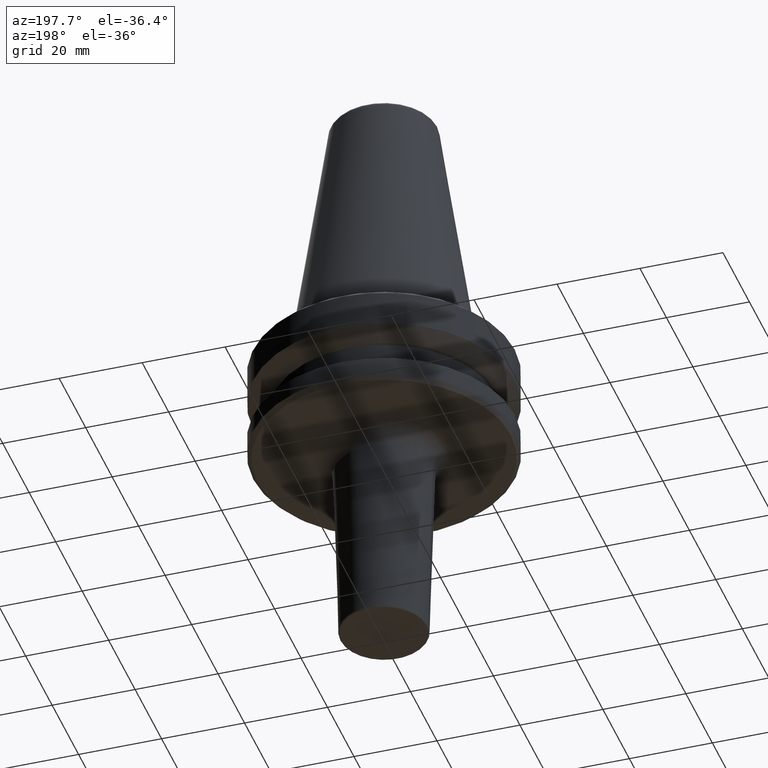
[diagram: clean part render]
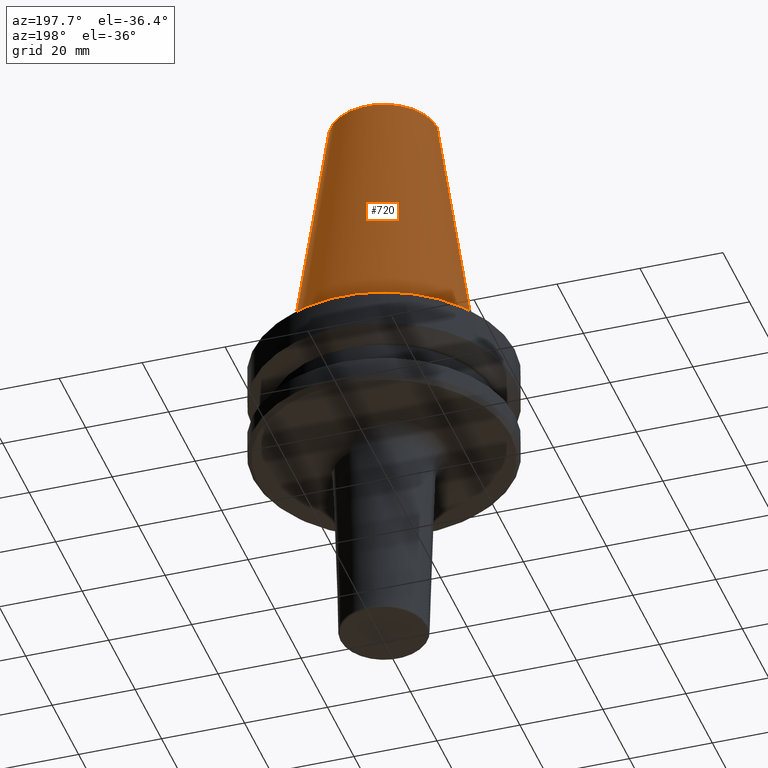
[diagram: same view with one face highlighted and labeled with its STEP entity id]
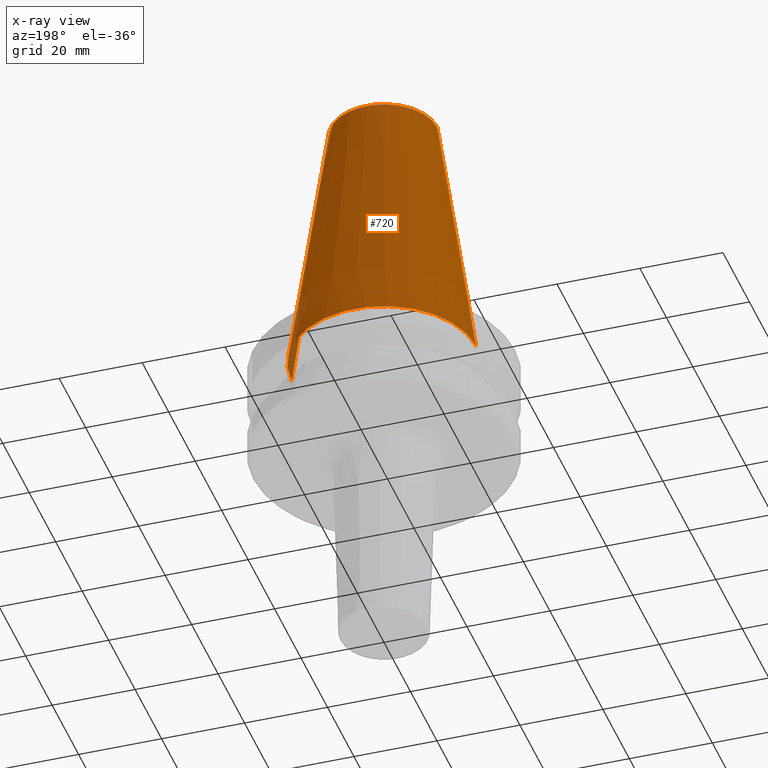
[diagram: x-ray of the same camera — body ghosted, the highlighted face saturated]
A machine part, auxiliary view. The second image highlights one B-rep face of the part: STEP entity #720.
The next image is the same camera in x-ray: the body ghosted, the highlighted face saturated — about 2% of this face is hidden behind the body in this view.
In plain terms, the highlighted conical surface has half-angle 8.297 deg.
Its self-contained STEP definition (entity closure, byte-faithful):
#1 = DIRECTION ( 'NONE',  ( -1.000000000000000000, 0.0000000000000000000, 0.0000000000000000000 ) ) ;
#13 = DIRECTION ( 'NONE',  ( 1.000000000000000000, 0.0000000000000000000, 0.0000000000000000000 ) ) ;
#80 = EDGE_LOOP ( 'NONE', ( #546, #548, #480, #976 ) ) ;
#107 = DIRECTION ( 'NONE',  ( 0.1443081888881795900, 1.767265616126607700E-017, -0.9895327920891826600 ) ) ;
#154 = VERTEX_POINT ( 'NONE', #803 ) ;
#222 = DIRECTION ( 'NONE',  ( 1.000000000000000000, 0.0000000000000000000, 0.0000000000000000000 ) ) ;
#254 = EDGE_CURVE ( 'NONE', #322, #677, #777, .T. ) ;
#303 = CIRCLE ( 'NONE', #657, 22.22499999999993700 ) ;
#322 = VERTEX_POINT ( 'NONE', #668 ) ;
#323 = VECTOR ( 'NONE', #847, 1000.000000000000000 ) ;
#344 = DIRECTION ( 'NONE',  ( -0.0000000000000000000, -0.0000000000000000000, 1.000000000000000000 ) ) ;
#434 = LINE ( 'NONE', #855, #846 ) ;
#443 = CARTESIAN_POINT ( 'NONE',  ( -22.22499999999993700, 2.721777511104985000E-015, -65.40000000000057400 ) ) ;
#480 = ORIENTED_EDGE ( 'NONE', *, *, #508, .T. ) ;
#508 = EDGE_CURVE ( 'NONE', #872, #677, #303, .T. ) ;
#546 = ORIENTED_EDGE ( 'NONE', *, *, #675, .F. ) ;
#548 = ORIENTED_EDGE ( 'NONE', *, *, #595, .T. ) ;
#552 = FACE_OUTER_BOUND ( 'NONE', #80, .T. ) ;
#595 = EDGE_CURVE ( 'NONE', #154, #872, #434, .T. ) ;
#628 = CARTESIAN_POINT ( 'NONE',  ( 0.0000000000000000000, 0.0000000000000000000, -65.40000000000057400 ) ) ;
#636 = CARTESIAN_POINT ( 'NONE',  ( 0.0000000000000000000, 0.0000000000000000000, -0.8556918111122247000 ) ) ;
#657 = AXIS2_PLACEMENT_3D ( 'NONE', #628, #682, #222 ) ;
#668 = CARTESIAN_POINT ( 'NONE',  ( -12.81220206925736900, 0.0000000000000000000, -0.8556918111122247000 ) ) ;
#675 = EDGE_CURVE ( 'NONE', #154, #322, #802, .T. ) ;
#677 = VERTEX_POINT ( 'NONE', #443 ) ;
#682 = DIRECTION ( 'NONE',  ( -0.0000000000000000000, -0.0000000000000000000, 1.000000000000000000 ) ) ;
#720 = ADVANCED_FACE ( 'NONE', ( #552 ), #935, .T. ) ;
#777 = LINE ( 'NONE', #986, #323 ) ;
#802 = CIRCLE ( 'NONE', #895, 12.81220206925736900 ) ;
#803 = CARTESIAN_POINT ( 'NONE',  ( 12.81220206925736900, 2.145409868259749100E-015, -0.8556918111122247000 ) ) ;
#846 = VECTOR ( 'NONE', #107, 1000.000000000000000 ) ;
#847 = DIRECTION ( 'NONE',  ( -0.1443081888881795900, 0.0000000000000000000, -0.9895327920891826600 ) ) ;
#855 = CARTESIAN_POINT ( 'NONE',  ( 12.81220206925736900, 1.569042225414513200E-015, -0.8556918111122247000 ) ) ;
#872 = VERTEX_POINT ( 'NONE', #1016 ) ;
#895 = AXIS2_PLACEMENT_3D ( 'NONE', #636, #344, #13 ) ;
#904 = CARTESIAN_POINT ( 'NONE',  ( 0.0000000000000000000, 0.0000000000000000000, -0.8556918111122247000 ) ) ;
#926 = DIRECTION ( 'NONE',  ( 0.0000000000000000000, 0.0000000000000000000, -1.000000000000000000 ) ) ;
#935 = CONICAL_SURFACE ( 'NONE', #1023, 12.81220206925736900, 0.1448138077623198300 ) ;
#976 = ORIENTED_EDGE ( 'NONE', *, *, #254, .F. ) ;
#986 = CARTESIAN_POINT ( 'NONE',  ( -12.81220206925736900, 0.0000000000000000000, -0.8556918111122247000 ) ) ;
#1016 = CARTESIAN_POINT ( 'NONE',  ( 22.22499999999993700, 0.0000000000000000000, -65.40000000000057400 ) ) ;
#1023 = AXIS2_PLACEMENT_3D ( 'NONE', #904, #926, #1 ) ;